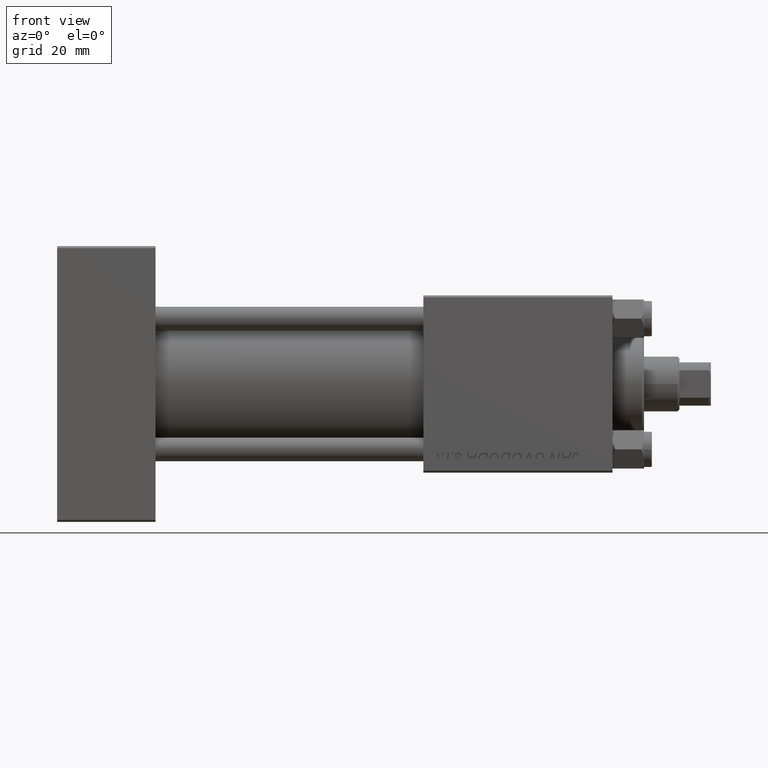
[diagram: clean part render]
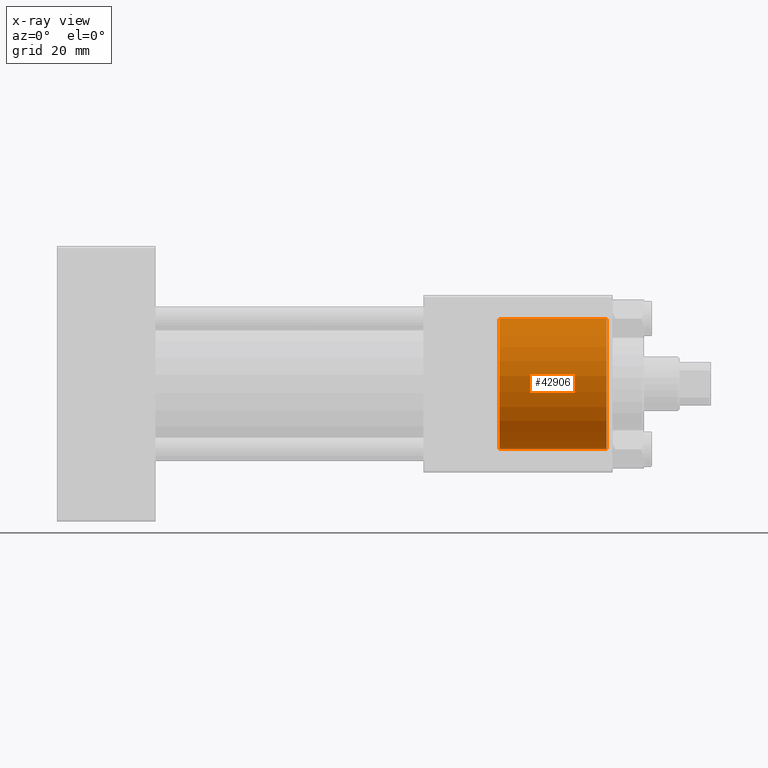
[diagram: x-ray — body ghosted, one internal face saturated and labeled with its STEP entity id]
A machine part, front view, then the same camera in x-ray: the body is ghosted and one INTERNAL B-rep face — a face not visible from any outside direction — is saturated and labeled: STEP entity #42906.
In plain terms, the highlighted cylindrical surface (partial cylindrical patch) has radius 16.5 mm, axis along (1, 0, 0).
Its self-contained STEP definition (entity closure, byte-faithful):
#245 = LINE ( 'NONE', #38654, #29470 ) ;
#3253 = CARTESIAN_POINT ( 'NONE',  ( 112.3000000000000114, 2.020667218593133100E-15, 16.50000000000000000 ) ) ;
#4051 = DIRECTION ( 'NONE',  ( 1.000000000000000000, -0.000000000000000000, -0.000000000000000000 ) ) ;
#4357 = CARTESIAN_POINT ( 'NONE',  ( 139.4999999999999432, 0.000000000000000000, 0.000000000000000000 ) ) ;
#5401 = CARTESIAN_POINT ( 'NONE',  ( 112.3000000000000114, 2.020667218593133100E-15, 16.50000000000000000 ) ) ;
#6549 = ORIENTED_EDGE ( 'NONE', *, *, #25250, .T. ) ;
#6822 = AXIS2_PLACEMENT_3D ( 'NONE', #38850, #34047, #23430 ) ;
#7970 = EDGE_CURVE ( 'NONE', #25001, #47529, #39084, .T. ) ;
#9982 = EDGE_CURVE ( 'NONE', #47529, #41794, #245, .T. ) ;
#10162 = CYLINDRICAL_SURFACE ( 'NONE', #27901, 16.50000000000000000 ) ;
#15211 = DIRECTION ( 'NONE',  ( 1.000000000000000000, 0.000000000000000000, 0.000000000000000000 ) ) ;
#17968 = CARTESIAN_POINT ( 'NONE',  ( 112.3000000000000114, 0.000000000000000000, 0.000000000000000000 ) ) ;
#18700 = FACE_OUTER_BOUND ( 'NONE', #41400, .T. ) ;
#22675 = LINE ( 'NONE', #3253, #46364 ) ;
#23430 = DIRECTION ( 'NONE',  ( 0.000000000000000000, 0.000000000000000000, -1.000000000000000000 ) ) ;
#24505 = ORIENTED_EDGE ( 'NONE', *, *, #9982, .F. ) ;
#25001 = VERTEX_POINT ( 'NONE', #5401 ) ;
#25250 = EDGE_CURVE ( 'NONE', #46371, #41794, #46790, .T. ) ;
#27095 = CARTESIAN_POINT ( 'NONE',  ( 139.4999999999999432, 0.000000000000000000, -16.50000000000000000 ) ) ;
#27901 = AXIS2_PLACEMENT_3D ( 'NONE', #17968, #34130, #45017 ) ;
#29470 = VECTOR ( 'NONE', #4051, 1000.000000000000000 ) ;
#30011 = DIRECTION ( 'NONE',  ( 1.000000000000000000, -0.000000000000000000, -0.000000000000000000 ) ) ;
#30859 = DIRECTION ( 'NONE',  ( 0.000000000000000000, 0.000000000000000000, 1.000000000000000000 ) ) ;
#33867 = AXIS2_PLACEMENT_3D ( 'NONE', #4357, #15211, #30859 ) ;
#34047 = DIRECTION ( 'NONE',  ( 1.000000000000000000, 0.000000000000000000, 0.000000000000000000 ) ) ;
#34130 = DIRECTION ( 'NONE',  ( 1.000000000000000000, -0.000000000000000000, -0.000000000000000000 ) ) ;
#38654 = CARTESIAN_POINT ( 'NONE',  ( 112.3000000000000114, 0.000000000000000000, -16.50000000000000000 ) ) ;
#38850 = CARTESIAN_POINT ( 'NONE',  ( 112.3000000000000114, 0.000000000000000000, 0.000000000000000000 ) ) ;
#39084 = CIRCLE ( 'NONE', #6822, 16.50000000000000000 ) ;
#39206 = CARTESIAN_POINT ( 'NONE',  ( 112.3000000000000114, 0.000000000000000000, -16.50000000000000000 ) ) ;
#39402 = EDGE_CURVE ( 'NONE', #25001, #46371, #22675, .T. ) ;
#40790 = ORIENTED_EDGE ( 'NONE', *, *, #39402, .T. ) ;
#41287 = ORIENTED_EDGE ( 'NONE', *, *, #7970, .F. ) ;
#41400 = EDGE_LOOP ( 'NONE', ( #41287, #40790, #6549, #24505 ) ) ;
#41794 = VERTEX_POINT ( 'NONE', #27095 ) ;
#42906 = ADVANCED_FACE ( 'NONE', ( #18700 ), #10162, .F. ) ;
#45017 = DIRECTION ( 'NONE',  ( 0.000000000000000000, 0.000000000000000000, -1.000000000000000000 ) ) ;
#46364 = VECTOR ( 'NONE', #30011, 1000.000000000000000 ) ;
#46371 = VERTEX_POINT ( 'NONE', #47685 ) ;
#46790 = CIRCLE ( 'NONE', #33867, 16.50000000000000000 ) ;
#47529 = VERTEX_POINT ( 'NONE', #39206 ) ;
#47685 = CARTESIAN_POINT ( 'NONE',  ( 139.4999999999999432, 2.020667218593133100E-15, 16.50000000000000000 ) ) ;